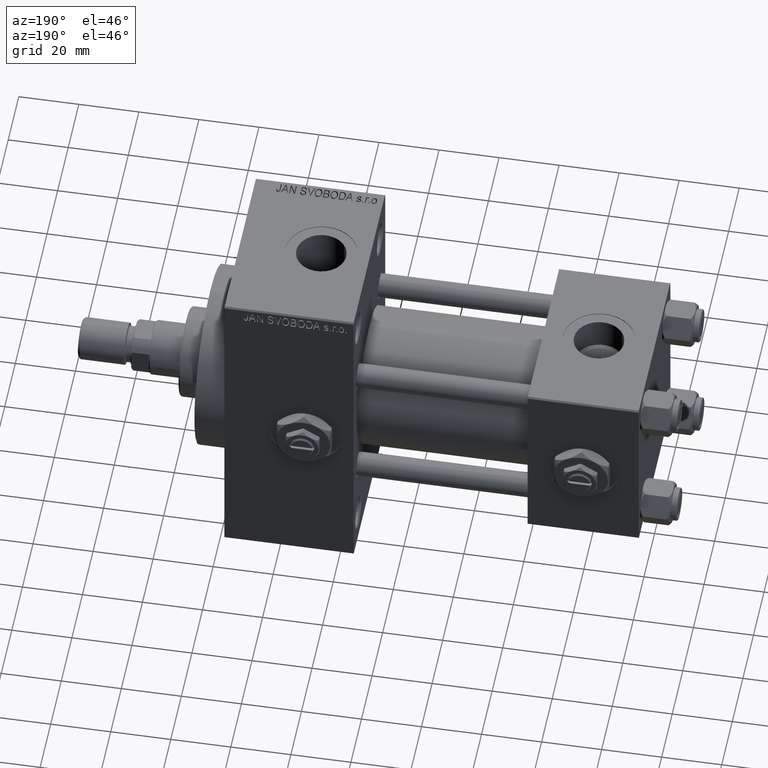
[diagram: clean part render]
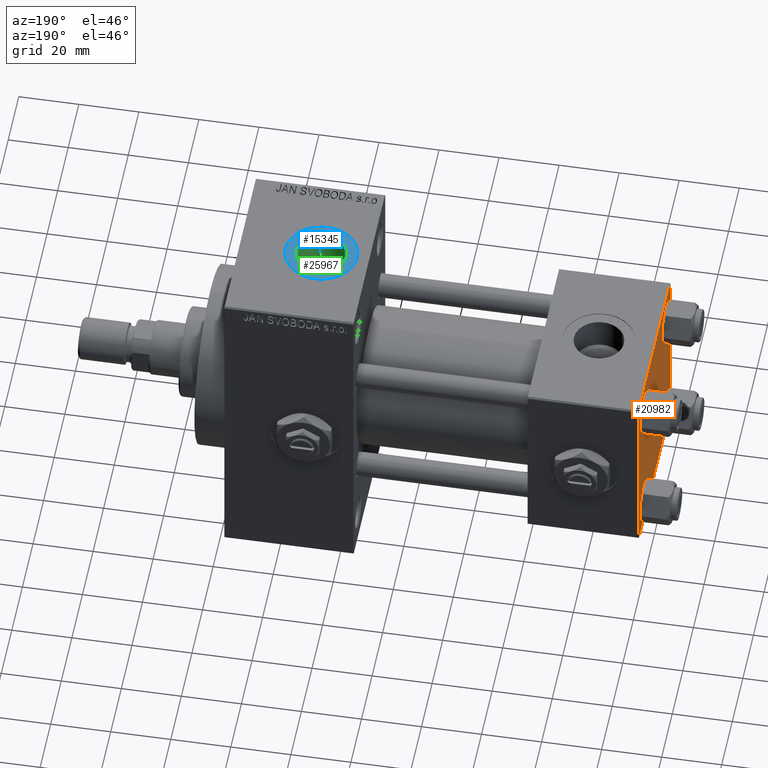
[diagram: same view with three faces highlighted in distinct colors, each labeled with its STEP entity id]
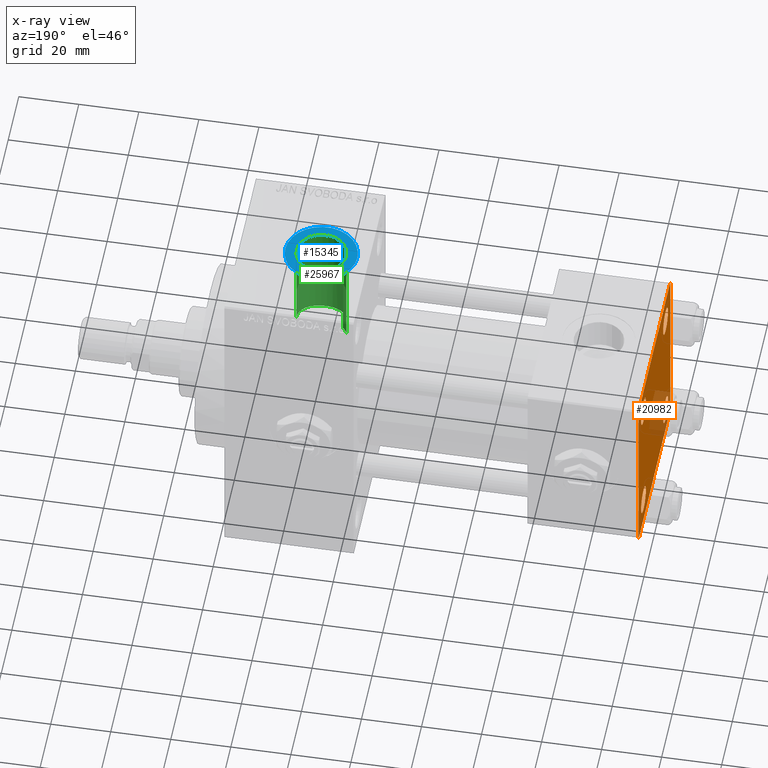
[diagram: x-ray of the same camera — body ghosted, the three highlighted faces saturated]
A machine part, auxiliary view with three faces highlighted in distinct colors.
The next image is the same camera in x-ray (body ghosted, the three faces saturated) — at least one of them is partly hidden behind the body in this view.
Their STEP definitions:

[orange] entity #20982 — the highlighted planar face has unit normal (-1, 0, 0).
#263 = EDGE_CURVE ( 'NONE', #43313, #36264, #24461, .T. ) ;
#1084 = CARTESIAN_POINT ( 'NONE',  ( 0.000000000000000000, 29.74999999999999645, 29.74999999999999645 ) ) ;
#1253 = DIRECTION ( 'NONE',  ( 1.000000000000000000, -0.000000000000000000, 0.000000000000000000 ) ) ;
#1678 = DIRECTION ( 'NONE',  ( 1.000000000000000000, -0.000000000000000000, 0.000000000000000000 ) ) ;
#1746 = DIRECTION ( 'NONE',  ( 0.000000000000000000, -1.000000000000000000, -1.156482317317871725E-16 ) ) ;
#2324 = ORIENTED_EDGE ( 'NONE', *, *, #8087, .T. ) ;
#2532 = EDGE_CURVE ( 'NONE', #22028, #41818, #32144, .T. ) ;
#2867 = LINE ( 'NONE', #18198, #40672 ) ;
#3232 = LINE ( 'NONE', #14049, #17997 ) ;
#4261 = CIRCLE ( 'NONE', #11499, 4.500000000000017764 ) ;
#4282 = CARTESIAN_POINT ( 'NONE',  ( 0.000000000000000000, -20.84999999999999076, 20.85000000000000497 ) ) ;
#5052 = DIRECTION ( 'NONE',  ( 0.000000000000000000, 0.000000000000000000, 1.000000000000000000 ) ) ;
#5155 = CARTESIAN_POINT ( 'NONE',  ( 0.000000000000000000, 29.74999999999957723, -29.75000000000040501 ) ) ;
#5288 = CARTESIAN_POINT ( 'NONE',  ( 0.000000000000000000, -30.00000000000000000, 29.49999999999999289 ) ) ;
#5372 = ORIENTED_EDGE ( 'NONE', *, *, #17200, .T. ) ;
#5721 = ORIENTED_EDGE ( 'NONE', *, *, #15632, .T. ) ;
#5904 = DIRECTION ( 'NONE',  ( -0.000000000000000000, -0.7071067811865574537, -0.7071067811865376918 ) ) ;
#6044 = DIRECTION ( 'NONE',  ( 1.000000000000000000, -0.000000000000000000, 0.000000000000000000 ) ) ;
#7014 = FACE_BOUND ( 'NONE', #27038, .T. ) ;
#7262 = FACE_BOUND ( 'NONE', #13580, .T. ) ;
#8087 = EDGE_CURVE ( 'NONE', #11582, #13001, #33294, .T. ) ;
#8158 = ORIENTED_EDGE ( 'NONE', *, *, #16712, .T. ) ;
#8705 = VERTEX_POINT ( 'NONE', #5288 ) ;
#8767 = DIRECTION ( 'NONE',  ( -0.000000000000000000, 0.000000000000000000, 1.000000000000000000 ) ) ;
#8899 = EDGE_LOOP ( 'NONE', ( #47697, #22593 ) ) ;
#9476 = DIRECTION ( 'NONE',  ( 0.000000000000000000, 0.000000000000000000, 1.000000000000000000 ) ) ;
#9742 = CIRCLE ( 'NONE', #29803, 4.500000000000017764 ) ;
#9921 = DIRECTION ( 'NONE',  ( 0.000000000000000000, -1.000000000000000000, -1.156482317317871725E-16 ) ) ;
#10070 = CIRCLE ( 'NONE', #47056, 4.500000000000017764 ) ;
#10091 = EDGE_CURVE ( 'NONE', #47768, #18300, #9742, .T. ) ;
#10234 = DIRECTION ( 'NONE',  ( 0.000000000000000000, 0.000000000000000000, 1.000000000000000000 ) ) ;
#10552 = CARTESIAN_POINT ( 'NONE',  ( 0.000000000000000000, -20.84999999999999076, -25.35000000000002274 ) ) ;
#11109 = VECTOR ( 'NONE', #47153, 1000.000000000000114 ) ;
#11372 = DIRECTION ( 'NONE',  ( 0.000000000000000000, 0.000000000000000000, 1.000000000000000000 ) ) ;
#11499 = AXIS2_PLACEMENT_3D ( 'NONE', #17023, #21029, #20290 ) ;
#11569 = CARTESIAN_POINT ( 'NONE',  ( 0.000000000000000000, 29.49999999999999289, 30.00000000000000000 ) ) ;
#11582 = VERTEX_POINT ( 'NONE', #32688 ) ;
#11597 = VERTEX_POINT ( 'NONE', #15986 ) ;
#11707 = VERTEX_POINT ( 'NONE', #25245 ) ;
#12039 = VERTEX_POINT ( 'NONE', #46882 ) ;
#12818 = CARTESIAN_POINT ( 'NONE',  ( 0.000000000000000000, 29.99999999999999289, 29.50000000000000000 ) ) ;
#13001 = VERTEX_POINT ( 'NONE', #47307 ) ;
#13235 = CARTESIAN_POINT ( 'NONE',  ( 0.000000000000000000, -20.84999999999999076, 20.85000000000000497 ) ) ;
#13450 = CARTESIAN_POINT ( 'NONE',  ( 0.000000000000000000, 20.84999999999999787, -25.35000000000001918 ) ) ;
#13580 = EDGE_LOOP ( 'NONE', ( #5721, #5372 ) ) ;
#13838 = EDGE_CURVE ( 'NONE', #36264, #24321, #14589, .T. ) ;
#14049 = CARTESIAN_POINT ( 'NONE',  ( 0.000000000000000000, -30.00000000000000000, 29.99999999999999289 ) ) ;
#14589 = LINE ( 'NONE', #49323, #33039 ) ;
#14881 = EDGE_CURVE ( 'NONE', #41818, #22028, #29868, .T. ) ;
#15632 = EDGE_CURVE ( 'NONE', #38508, #25255, #20278, .T. ) ;
#15986 = CARTESIAN_POINT ( 'NONE',  ( 0.000000000000000000, 20.84999999999999787, 25.35000000000001918 ) ) ;
#16225 = CARTESIAN_POINT ( 'NONE',  ( 0.000000000000000000, 20.84999999999999787, -20.85000000000000142 ) ) ;
#16266 = AXIS2_PLACEMENT_3D ( 'NONE', #13235, #1678, #9476 ) ;
#16548 = AXIS2_PLACEMENT_3D ( 'NONE', #25594, #48284, #40490 ) ;
#16712 = EDGE_CURVE ( 'NONE', #24321, #39071, #16966, .T. ) ;
#16966 = LINE ( 'NONE', #5155, #31566 ) ;
#17023 = CARTESIAN_POINT ( 'NONE',  ( 0.000000000000000000, -20.84999999999999076, -20.85000000000000497 ) ) ;
#17200 = EDGE_CURVE ( 'NONE', #25255, #38508, #46848, .T. ) ;
#17339 = CARTESIAN_POINT ( 'NONE',  ( 0.000000000000000000, 29.99999999999999289, -30.00000000000000000 ) ) ;
#17997 = VECTOR ( 'NONE', #29393, 1000.000000000000000 ) ;
#18023 = DIRECTION ( 'NONE',  ( 1.000000000000000000, -0.000000000000000000, 0.000000000000000000 ) ) ;
#18198 = CARTESIAN_POINT ( 'NONE',  ( 0.000000000000000000, 29.99999999999999289, 30.00000000000000000 ) ) ;
#18300 = VERTEX_POINT ( 'NONE', #22788 ) ;
#18609 = DIRECTION ( 'NONE',  ( 1.000000000000000000, -0.000000000000000000, 0.000000000000000000 ) ) ;
#18944 = CARTESIAN_POINT ( 'NONE',  ( -0.000000000000000000, -29.74999999999999645, 29.74999999999999645 ) ) ;
#19197 = EDGE_LOOP ( 'NONE', ( #42544, #8158, #19503, #2324, #40662, #31643, #29646, #29338 ) ) ;
#19503 = ORIENTED_EDGE ( 'NONE', *, *, #40224, .T. ) ;
#20278 = CIRCLE ( 'NONE', #16266, 4.500000000000017764 ) ;
#20290 = DIRECTION ( 'NONE',  ( 0.000000000000000000, 0.000000000000000000, 1.000000000000000000 ) ) ;
#20982 = ADVANCED_FACE ( 'NONE', ( #7262, #38468, #41502, #7014, #22326 ), #43503, .T. ) ;
#21029 = DIRECTION ( 'NONE',  ( 1.000000000000000000, -0.000000000000000000, 0.000000000000000000 ) ) ;
#22028 = VERTEX_POINT ( 'NONE', #46773 ) ;
#22273 = ORIENTED_EDGE ( 'NONE', *, *, #42565, .T. ) ;
#22326 = FACE_OUTER_BOUND ( 'NONE', #19197, .T. ) ;
#22373 = DIRECTION ( 'NONE',  ( 0.000000000000000000, 0.000000000000000000, -1.000000000000000000 ) ) ;
#22593 = ORIENTED_EDGE ( 'NONE', *, *, #14881, .T. ) ;
#22622 = DIRECTION ( 'NONE',  ( 0.000000000000000000, 0.000000000000000000, 1.000000000000000000 ) ) ;
#22788 = CARTESIAN_POINT ( 'NONE',  ( 0.000000000000000000, -20.84999999999999076, -16.34999999999998721 ) ) ;
#24266 = DIRECTION ( 'NONE',  ( 1.000000000000000000, -0.000000000000000000, 0.000000000000000000 ) ) ;
#24321 = VERTEX_POINT ( 'NONE', #28728 ) ;
#24461 = LINE ( 'NONE', #1084, #11109 ) ;
#24744 = DIRECTION ( 'NONE',  ( 0.000000000000000000, -0.7071067811865474617, 0.7071067811865474617 ) ) ;
#25126 = ORIENTED_EDGE ( 'NONE', *, *, #10091, .T. ) ;
#25245 = CARTESIAN_POINT ( 'NONE',  ( 0.000000000000000000, -29.49999999999998579, 29.99999999999999289 ) ) ;
#25255 = VERTEX_POINT ( 'NONE', #45351 ) ;
#25594 = CARTESIAN_POINT ( 'NONE',  ( 0.000000000000000000, 20.84999999999999787, 20.85000000000000142 ) ) ;
#25803 = ORIENTED_EDGE ( 'NONE', *, *, #27201, .T. ) ;
#26071 = VECTOR ( 'NONE', #34311, 1000.000000000000114 ) ;
#27038 = EDGE_LOOP ( 'NONE', ( #25803, #22273 ) ) ;
#27201 = EDGE_CURVE ( 'NONE', #11597, #12039, #43085, .T. ) ;
#27325 = VECTOR ( 'NONE', #24744, 1000.000000000000114 ) ;
#28728 = CARTESIAN_POINT ( 'NONE',  ( 0.000000000000000000, 29.99999999999999289, -29.50000000000000000 ) ) ;
#29338 = ORIENTED_EDGE ( 'NONE', *, *, #263, .T. ) ;
#29393 = DIRECTION ( 'NONE',  ( 0.000000000000000000, 0.000000000000000000, -1.000000000000000000 ) ) ;
#29646 = ORIENTED_EDGE ( 'NONE', *, *, #43834, .F. ) ;
#29803 = AXIS2_PLACEMENT_3D ( 'NONE', #46117, #1253, #11372 ) ;
#29868 = CIRCLE ( 'NONE', #40358, 4.500000000000017764 ) ;
#31147 = CARTESIAN_POINT ( 'NONE',  ( 0.000000000000000000, 0.000000000000000000, 0.000000000000000000 ) ) ;
#31566 = VECTOR ( 'NONE', #5904, 999.9999999999998863 ) ;
#31643 = ORIENTED_EDGE ( 'NONE', *, *, #42004, .T. ) ;
#31954 = LINE ( 'NONE', #17339, #42138 ) ;
#32144 = CIRCLE ( 'NONE', #38574, 4.500000000000017764 ) ;
#32688 = CARTESIAN_POINT ( 'NONE',  ( 0.000000000000000000, -29.50000000000000000, -30.00000000000000711 ) ) ;
#33039 = VECTOR ( 'NONE', #22373, 1000.000000000000000 ) ;
#33294 = LINE ( 'NONE', #43911, #27325 ) ;
#33295 = CARTESIAN_POINT ( 'NONE',  ( 0.000000000000000000, 29.49999999999997868, -30.00000000000000000 ) ) ;
#34311 = DIRECTION ( 'NONE',  ( -0.000000000000000000, 0.7071067811865474617, 0.7071067811865474617 ) ) ;
#34605 = EDGE_CURVE ( 'NONE', #18300, #47768, #4261, .T. ) ;
#35177 = DIRECTION ( 'NONE',  ( -1.000000000000000000, 0.000000000000000000, -0.000000000000000000 ) ) ;
#35602 = DIRECTION ( 'NONE',  ( 0.000000000000000000, 0.000000000000000000, 1.000000000000000000 ) ) ;
#36000 = CARTESIAN_POINT ( 'NONE',  ( 0.000000000000000000, 20.84999999999999787, -20.85000000000000142 ) ) ;
#36264 = VERTEX_POINT ( 'NONE', #12818 ) ;
#37017 = CARTESIAN_POINT ( 'NONE',  ( 0.000000000000000000, -20.84999999999999076, 25.35000000000002274 ) ) ;
#38144 = AXIS2_PLACEMENT_3D ( 'NONE', #31147, #35177, #8767 ) ;
#38468 = FACE_BOUND ( 'NONE', #46565, .T. ) ;
#38508 = VERTEX_POINT ( 'NONE', #37017 ) ;
#38574 = AXIS2_PLACEMENT_3D ( 'NONE', #36000, #6044, #5052 ) ;
#38805 = AXIS2_PLACEMENT_3D ( 'NONE', #4282, #18609, #22622 ) ;
#39071 = VERTEX_POINT ( 'NONE', #33295 ) ;
#39942 = EDGE_CURVE ( 'NONE', #8705, #13001, #3232, .T. ) ;
#40224 = EDGE_CURVE ( 'NONE', #39071, #11582, #31954, .T. ) ;
#40358 = AXIS2_PLACEMENT_3D ( 'NONE', #16225, #24266, #35602 ) ;
#40490 = DIRECTION ( 'NONE',  ( 0.000000000000000000, 0.000000000000000000, 1.000000000000000000 ) ) ;
#40662 = ORIENTED_EDGE ( 'NONE', *, *, #39942, .F. ) ;
#40672 = VECTOR ( 'NONE', #9921, 1000.000000000000000 ) ;
#41502 = FACE_BOUND ( 'NONE', #8899, .T. ) ;
#41818 = VERTEX_POINT ( 'NONE', #13450 ) ;
#42004 = EDGE_CURVE ( 'NONE', #8705, #11707, #49665, .T. ) ;
#42138 = VECTOR ( 'NONE', #1746, 1000.000000000000000 ) ;
#42544 = ORIENTED_EDGE ( 'NONE', *, *, #13838, .T. ) ;
#42565 = EDGE_CURVE ( 'NONE', #12039, #11597, #10070, .T. ) ;
#43085 = CIRCLE ( 'NONE', #16548, 4.500000000000017764 ) ;
#43313 = VERTEX_POINT ( 'NONE', #11569 ) ;
#43503 = PLANE ( 'NONE',  #38144 ) ;
#43834 = EDGE_CURVE ( 'NONE', #43313, #11707, #2867, .T. ) ;
#43911 = CARTESIAN_POINT ( 'NONE',  ( 0.000000000000000000, -29.75000000000001066, -29.75000000000001066 ) ) ;
#44734 = CARTESIAN_POINT ( 'NONE',  ( 0.000000000000000000, 20.84999999999999787, 20.85000000000000142 ) ) ;
#45351 = CARTESIAN_POINT ( 'NONE',  ( 0.000000000000000000, -20.84999999999999076, 16.34999999999998721 ) ) ;
#46117 = CARTESIAN_POINT ( 'NONE',  ( 0.000000000000000000, -20.84999999999999076, -20.85000000000000497 ) ) ;
#46565 = EDGE_LOOP ( 'NONE', ( #49097, #25126 ) ) ;
#46773 = CARTESIAN_POINT ( 'NONE',  ( 0.000000000000000000, 20.84999999999999787, -16.34999999999998366 ) ) ;
#46848 = CIRCLE ( 'NONE', #38805, 4.500000000000017764 ) ;
#46882 = CARTESIAN_POINT ( 'NONE',  ( 0.000000000000000000, 20.84999999999999787, 16.34999999999998366 ) ) ;
#47056 = AXIS2_PLACEMENT_3D ( 'NONE', #44734, #18023, #10234 ) ;
#47153 = DIRECTION ( 'NONE',  ( 0.000000000000000000, 0.7071067811865474617, -0.7071067811865474617 ) ) ;
#47307 = CARTESIAN_POINT ( 'NONE',  ( 0.000000000000000000, -30.00000000000000000, -29.50000000000001776 ) ) ;
#47697 = ORIENTED_EDGE ( 'NONE', *, *, #2532, .T. ) ;
#47768 = VERTEX_POINT ( 'NONE', #10552 ) ;
#48284 = DIRECTION ( 'NONE',  ( 1.000000000000000000, -0.000000000000000000, 0.000000000000000000 ) ) ;
#49097 = ORIENTED_EDGE ( 'NONE', *, *, #34605, .T. ) ;
#49323 = CARTESIAN_POINT ( 'NONE',  ( 0.000000000000000000, 29.99999999999999289, 30.00000000000000000 ) ) ;
#49665 = LINE ( 'NONE', #18944, #26071 ) ;

[blue] entity #15345 — the highlighted planar face has unit normal (0, 0, 1).
#544 = EDGE_LOOP ( 'NONE', ( #6720, #5436 ) ) ;
#1108 = DIRECTION ( 'NONE',  ( 1.000000000000000000, 0.000000000000000000, 0.000000000000000000 ) ) ;
#4641 = DIRECTION ( 'NONE',  ( -0.000000000000000000, -0.000000000000000000, -1.000000000000000000 ) ) ;
#5131 = AXIS2_PLACEMENT_3D ( 'NONE', #14584, #7555, #6565 ) ;
#5436 = ORIENTED_EDGE ( 'NONE', *, *, #32271, .T. ) ;
#6565 = DIRECTION ( 'NONE',  ( 1.000000000000000000, 0.000000000000000000, 0.000000000000000000 ) ) ;
#6720 = ORIENTED_EDGE ( 'NONE', *, *, #47299, .T. ) ;
#7415 = VERTEX_POINT ( 'NONE', #46611 ) ;
#7555 = DIRECTION ( 'NONE',  ( 0.000000000000000000, 0.000000000000000000, 1.000000000000000000 ) ) ;
#7604 = EDGE_CURVE ( 'NONE', #45695, #7415, #28111, .T. ) ;
#8392 = VERTEX_POINT ( 'NONE', #27716 ) ;
#10840 = ORIENTED_EDGE ( 'NONE', *, *, #7604, .T. ) ;
#11801 = DIRECTION ( 'NONE',  ( 0.000000000000000000, 0.000000000000000000, 1.000000000000000000 ) ) ;
#12440 = CIRCLE ( 'NONE', #5131, 11.99999999999999645 ) ;
#12853 = AXIS2_PLACEMENT_3D ( 'NONE', #35466, #11801, #20103 ) ;
#14584 = CARTESIAN_POINT ( 'NONE',  ( 111.0000000000000000, 6.302828629382399373E-15, 54.29999999999999716 ) ) ;
#15345 = ADVANCED_FACE ( 'NONE', ( #49781, #42750 ), #23332, .T. ) ;
#18273 = CARTESIAN_POINT ( 'NONE',  ( 123.0000000000000000, 6.302828629382399373E-15, 54.29999999999999716 ) ) ;
#20103 = DIRECTION ( 'NONE',  ( 1.000000000000000000, 0.000000000000000000, 0.000000000000000000 ) ) ;
#22330 = EDGE_LOOP ( 'NONE', ( #10840, #43518 ) ) ;
#22571 = DIRECTION ( 'NONE',  ( 0.000000000000000000, 0.000000000000000000, 1.000000000000000000 ) ) ;
#22992 = CARTESIAN_POINT ( 'NONE',  ( 111.0000000000000000, 6.302828629382400162E-15, 54.29999999999999716 ) ) ;
#23332 = PLANE ( 'NONE',  #24232 ) ;
#24232 = AXIS2_PLACEMENT_3D ( 'NONE', #46766, #22571, #38716 ) ;
#27149 = CIRCLE ( 'NONE', #40851, 8.330000000000003624 ) ;
#27693 = CARTESIAN_POINT ( 'NONE',  ( 111.0000000000000000, 6.302828629382400162E-15, 54.29999999999999716 ) ) ;
#27716 = CARTESIAN_POINT ( 'NONE',  ( 102.6700000000000017, 6.302828629382400162E-15, 54.29999999999999716 ) ) ;
#28111 = CIRCLE ( 'NONE', #12853, 11.99999999999999645 ) ;
#30646 = CARTESIAN_POINT ( 'NONE',  ( 119.3300000000000125, 7.322959413072145713E-15, 54.29999999999999716 ) ) ;
#32233 = DIRECTION ( 'NONE',  ( 1.000000000000000000, 0.000000000000000000, 0.000000000000000000 ) ) ;
#32271 = EDGE_CURVE ( 'NONE', #41333, #8392, #27149, .T. ) ;
#35466 = CARTESIAN_POINT ( 'NONE',  ( 111.0000000000000000, 6.302828629382399373E-15, 54.29999999999999716 ) ) ;
#37590 = AXIS2_PLACEMENT_3D ( 'NONE', #22992, #4641, #1108 ) ;
#38635 = EDGE_CURVE ( 'NONE', #7415, #45695, #12440, .T. ) ;
#38716 = DIRECTION ( 'NONE',  ( 1.000000000000000000, 0.000000000000000000, -0.000000000000000000 ) ) ;
#40851 = AXIS2_PLACEMENT_3D ( 'NONE', #27693, #43339, #32233 ) ;
#41333 = VERTEX_POINT ( 'NONE', #30646 ) ;
#42750 = FACE_OUTER_BOUND ( 'NONE', #22330, .T. ) ;
#43220 = CIRCLE ( 'NONE', #37590, 8.330000000000003624 ) ;
#43339 = DIRECTION ( 'NONE',  ( -0.000000000000000000, -0.000000000000000000, -1.000000000000000000 ) ) ;
#43518 = ORIENTED_EDGE ( 'NONE', *, *, #38635, .T. ) ;
#45695 = VERTEX_POINT ( 'NONE', #18273 ) ;
#46611 = CARTESIAN_POINT ( 'NONE',  ( 99.00000000000000000, 7.772404788359221939E-15, 54.29999999999999716 ) ) ;
#46766 = CARTESIAN_POINT ( 'NONE',  ( 111.0000000000000000, 6.302828629382399373E-15, 54.29999999999999716 ) ) ;
#47299 = EDGE_CURVE ( 'NONE', #8392, #41333, #43220, .T. ) ;
#49781 = FACE_BOUND ( 'NONE', #544, .T. ) ;

[green] entity #25967 — the highlighted cylindrical surface (edge-blend (fillet) strip) has radius 8.33 mm, axis along (0, 0, -1).
#1494 = CARTESIAN_POINT ( 'NONE',  ( 112.3403738839046895, -8.265299052519043954, 20.92696222447262500 ) ) ;
#2144 = B_SPLINE_CURVE_WITH_KNOTS ( 'NONE', 3,
 ( #45236, #41961, #11231, #19028, #29614, #26322, #30611, #41716, #41469, #6980, #41221, #45977, #3706, #26574 ),
 .UNSPECIFIED., .F., .F.,
 ( 4, 2, 2, 2, 2, 2, 4 ),
 ( 0.02049932184141860583, 0.02125918471438761892, 0.02201904758735663548, 0.02353877333329466165, 0.02429863620626367127, 0.02505849907923268435, 0.02657822482517071053 ),
 .UNSPECIFIED. ) ;
#2387 = B_SPLINE_CURVE_WITH_KNOTS ( 'NONE', 3,
 ( #40003, #21084, #5529, #8555, #39756, #47054, #23868, #39252, #35464, #4768, #16335, #35715, #43537, #12555, #27895, #43286, #1494, #24124, #39509, #31945, #47306, #12801, #5278, #20600, #16835, #48527, #17570, #26089, #33165, #14529, #45249, #32923 ),
 .UNSPECIFIED., .F., .F.,
 ( 4, 2, 2, 2, 2, 2, 2, 2, 2, 2, 2, 2, 2, 2, 2, 4 ),
 ( 0.02026158208243475367, 0.02152696880141127117, 0.02279235552038778867, 0.02405774223936430270, 0.02532312895834082020, 0.02658851567731733770, 0.02785390239629385173, 0.03038467583424691448, 0.03291544927219997724, 0.03354814263168821864, 0.03418083599117646698, 0.03544622271015295673, 0.03671160942912944647, 0.03797699614810593621, 0.03924238286708242596, 0.04050776958605891570 ),
 .UNSPECIFIED. ) ;
#3415 = CARTESIAN_POINT ( 'NONE',  ( 102.6700000000000017, 6.302828629382400162E-15, 77.29999999999999716 ) ) ;
#3706 = CARTESIAN_POINT ( 'NONE',  ( 102.6700000000000017, -0.5084530117862672283, 15.49999999999999822 ) ) ;
#4768 = CARTESIAN_POINT ( 'NONE',  ( 117.6031555897930758, -5.095277354536523973, 21.91828998158686304 ) ) ;
#4878 = DIRECTION ( 'NONE',  ( 0.000000000000000000, 0.000000000000000000, -1.000000000000000000 ) ) ;
#5278 = CARTESIAN_POINT ( 'NONE',  ( 109.3814412075936531, -8.182171164303330357, 20.95982457214782357 ) ) ;
#5383 = CARTESIAN_POINT ( 'NONE',  ( 119.3300000000000125, 7.322959413072145713E-15, 77.29999999999999716 ) ) ;
#5529 = CARTESIAN_POINT ( 'NONE',  ( 119.2979863424998257, -0.8432915997222955040, 22.48808859033163188 ) ) ;
#6980 = CARTESIAN_POINT ( 'NONE',  ( 102.9120937043486492, -2.009728921522578204, 15.37113873265544761 ) ) ;
#8392 = VERTEX_POINT ( 'NONE', #27716 ) ;
#8555 = CARTESIAN_POINT ( 'NONE',  ( 119.1699291769579077, -1.679278209817679945, 22.44115179447787156 ) ) ;
#9402 = LINE ( 'NONE', #5383, #48880 ) ;
#11231 = CARTESIAN_POINT ( 'NONE',  ( 104.4250998660804157, -5.120614576075413815, 14.63125231332695009 ) ) ;
#12555 = CARTESIAN_POINT ( 'NONE',  ( 115.4717217021022293, -7.077548616542896909, 21.36464718587223643 ) ) ;
#12801 = CARTESIAN_POINT ( 'NONE',  ( 109.7966742200955963, -8.253438808842114227, 20.93161653585327286 ) ) ;
#12815 = LINE ( 'NONE', #3415, #23494 ) ;
#14529 = CARTESIAN_POINT ( 'NONE',  ( 105.3158746668531620, -6.103616970294096333, 21.65812902678066720 ) ) ;
#16335 = CARTESIAN_POINT ( 'NONE',  ( 117.3413009043436830, -5.417501232309193782, 21.84028767977485330 ) ) ;
#16401 = CARTESIAN_POINT ( 'NONE',  ( 104.7400000000000233, -5.495570943951159748, 14.49305695841977126 ) ) ;
#16835 = CARTESIAN_POINT ( 'NONE',  ( 108.1560306839754588, -7.840697625789145420, 21.09036237300174932 ) ) ;
#17302 = EDGE_CURVE ( 'NONE', #8392, #19199, #12815, .T. ) ;
#17570 = CARTESIAN_POINT ( 'NONE',  ( 107.0116854358692962, -7.325101535721546320, 21.27547271216653968 ) ) ;
#19028 = CARTESIAN_POINT ( 'NONE',  ( 104.1330257393911722, -4.721723193058591228, 14.76480843021959899 ) ) ;
#19182 = ORIENTED_EDGE ( 'NONE', *, *, #31924, .T. ) ;
#19199 = VERTEX_POINT ( 'NONE', #49193 ) ;
#19280 = DIRECTION ( 'NONE',  ( 0.000000000000000000, 0.000000000000000000, -1.000000000000000000 ) ) ;
#19529 = CYLINDRICAL_SURFACE ( 'NONE', #21305, 8.330000000000003624 ) ;
#20600 = CARTESIAN_POINT ( 'NONE',  ( 108.5613052431537540, -7.976241308370980221, 21.03905286955202314 ) ) ;
#21084 = CARTESIAN_POINT ( 'NONE',  ( 119.3300000000000409, -0.4228661663087284195, 22.50000000000001421 ) ) ;
#21305 = AXIS2_PLACEMENT_3D ( 'NONE', #27329, #19280, #34644 ) ;
#22811 = ORIENTED_EDGE ( 'NONE', *, *, #34143, .T. ) ;
#23039 = VERTEX_POINT ( 'NONE', #24782 ) ;
#23494 = VECTOR ( 'NONE', #37400, 1000.000000000000000 ) ;
#23868 = CARTESIAN_POINT ( 'NONE',  ( 118.6639140372367791, -3.290714903397350177, 22.26132373405805254 ) ) ;
#24124 = CARTESIAN_POINT ( 'NONE',  ( 111.2794540716097629, -8.328024065339553417, 20.90201419577500985 ) ) ;
#24451 = CARTESIAN_POINT ( 'NONE',  ( 104.7400000000000233, -5.495570943951159748, 21.81854028114621258 ) ) ;
#24782 = CARTESIAN_POINT ( 'NONE',  ( 119.3300000000000125, 2.755455287773006291E-15, 22.50000000000000355 ) ) ;
#25967 = ADVANCED_FACE ( 'NONE', ( #26821 ), #19529, .F. ) ;
#26089 = CARTESIAN_POINT ( 'NONE',  ( 106.2981393575764457, -6.888851288155064978, 21.42070446004186479 ) ) ;
#26322 = CARTESIAN_POINT ( 'NONE',  ( 103.6117315744683509, -3.879035329860508252, 15.01323898488448272 ) ) ;
#26574 = CARTESIAN_POINT ( 'NONE',  ( 102.6700000000000017, 1.898202536900960226E-15, 15.50000000000000000 ) ) ;
#26821 = FACE_OUTER_BOUND ( 'NONE', #37364, .T. ) ;
#27149 = CIRCLE ( 'NONE', #40851, 8.330000000000003624 ) ;
#27329 = CARTESIAN_POINT ( 'NONE',  ( 111.0000000000000000, 6.302828629382400162E-15, 77.29999999999999716 ) ) ;
#27693 = CARTESIAN_POINT ( 'NONE',  ( 111.0000000000000000, 6.302828629382400162E-15, 54.29999999999999716 ) ) ;
#27716 = CARTESIAN_POINT ( 'NONE',  ( 102.6700000000000017, 6.302828629382400162E-15, 54.29999999999999716 ) ) ;
#27895 = CARTESIAN_POINT ( 'NONE',  ( 114.7487363894115333, -7.487015359358448308, 21.22021487626641090 ) ) ;
#27961 = VERTEX_POINT ( 'NONE', #16401 ) ;
#29614 = CARTESIAN_POINT ( 'NONE',  ( 103.9948433974193023, -4.514179031432338007, 14.82972530592077298 ) ) ;
#30611 = CARTESIAN_POINT ( 'NONE',  ( 103.3948893894385748, -3.435066750549618853, 15.12202026186481341 ) ) ;
#30646 = CARTESIAN_POINT ( 'NONE',  ( 119.3300000000000125, 7.322959413072145713E-15, 54.29999999999999716 ) ) ;
#31924 = EDGE_CURVE ( 'NONE', #41333, #23039, #9402, .T. ) ;
#31945 = CARTESIAN_POINT ( 'NONE',  ( 110.6388607599010214, -8.324890737869420576, 20.90325837862613412 ) ) ;
#32233 = DIRECTION ( 'NONE',  ( 1.000000000000000000, 0.000000000000000000, 0.000000000000000000 ) ) ;
#32271 = EDGE_CURVE ( 'NONE', #41333, #8392, #27149, .T. ) ;
#32923 = CARTESIAN_POINT ( 'NONE',  ( 104.7400000000000233, -5.495570943951159748, 21.81854028114621258 ) ) ;
#33165 = CARTESIAN_POINT ( 'NONE',  ( 105.9550632640747949, -6.641689111475751695, 21.49922460944221569 ) ) ;
#33918 = CARTESIAN_POINT ( 'NONE',  ( 104.7400000000000233, -5.495570943951159748, 77.29999999999999716 ) ) ;
#34143 = EDGE_CURVE ( 'NONE', #23039, #49094, #2387, .T. ) ;
#34644 = DIRECTION ( 'NONE',  ( -1.000000000000000000, 0.000000000000000000, 0.000000000000000000 ) ) ;
#35303 = ORIENTED_EDGE ( 'NONE', *, *, #17302, .F. ) ;
#35464 = CARTESIAN_POINT ( 'NONE',  ( 118.0799258618782517, -4.408873422199381054, 22.06660649451128364 ) ) ;
#35715 = CARTESIAN_POINT ( 'NONE',  ( 116.7709310325000160, -6.021442665975470732, 21.68155238348414926 ) ) ;
#37216 = LINE ( 'NONE', #33918, #48550 ) ;
#37364 = EDGE_LOOP ( 'NONE', ( #38092, #19182, #22811, #46099, #39220, #35303 ) ) ;
#37400 = DIRECTION ( 'NONE',  ( 0.000000000000000000, 0.000000000000000000, -1.000000000000000000 ) ) ;
#38092 = ORIENTED_EDGE ( 'NONE', *, *, #32271, .F. ) ;
#39220 = ORIENTED_EDGE ( 'NONE', *, *, #46123, .T. ) ;
#39252 = CARTESIAN_POINT ( 'NONE',  ( 118.2951098973458244, -4.042988316980855146, 22.13706359110742383 ) ) ;
#39509 = CARTESIAN_POINT ( 'NONE',  ( 111.0645977083230065, -8.332469890991669459, 20.90023832775082724 ) ) ;
#39756 = CARTESIAN_POINT ( 'NONE',  ( 119.0725935047802437, -2.097577831626820100, 22.40566635581345167 ) ) ;
#39857 = EDGE_CURVE ( 'NONE', #27961, #49094, #37216, .T. ) ;
#40003 = CARTESIAN_POINT ( 'NONE',  ( 119.3300000000000125, 2.755455287773006291E-15, 22.50000000000000355 ) ) ;
#40851 = AXIS2_PLACEMENT_3D ( 'NONE', #27693, #43339, #32233 ) ;
#41221 = CARTESIAN_POINT ( 'NONE',  ( 102.8541189623221044, -1.760060972621111608, 15.40178429883650502 ) ) ;
#41250 = DIRECTION ( 'NONE',  ( -0.000000000000000000, -0.000000000000000000, 1.000000000000000000 ) ) ;
#41333 = VERTEX_POINT ( 'NONE', #30646 ) ;
#41469 = CARTESIAN_POINT ( 'NONE',  ( 103.0493583877047001, -2.498106590616146150, 15.29935880154671857 ) ) ;
#41716 = CARTESIAN_POINT ( 'NONE',  ( 103.1283513953167699, -2.736452263294506526, 15.25837881643903948 ) ) ;
#41961 = CARTESIAN_POINT ( 'NONE',  ( 104.5787930821608853, -5.311940286469821082, 14.56268721714078396 ) ) ;
#43286 = CARTESIAN_POINT ( 'NONE',  ( 113.1626272159215887, -8.088971939222112439, 20.99812971082578272 ) ) ;
#43339 = DIRECTION ( 'NONE',  ( -0.000000000000000000, -0.000000000000000000, -1.000000000000000000 ) ) ;
#43537 = CARTESIAN_POINT ( 'NONE',  ( 116.4597915280917988, -6.305104980880364529, 21.60018777995134798 ) ) ;
#45236 = CARTESIAN_POINT ( 'NONE',  ( 104.7400000000000233, -5.495570943951159748, 14.49305695841977126 ) ) ;
#45249 = CARTESIAN_POINT ( 'NONE',  ( 105.0173696454154140, -5.811522461638596759, 21.73895961452385350 ) ) ;
#45977 = CARTESIAN_POINT ( 'NONE',  ( 102.7161642970316251, -1.011996084777072147, 15.47504315940083508 ) ) ;
#46099 = ORIENTED_EDGE ( 'NONE', *, *, #39857, .F. ) ;
#46123 = EDGE_CURVE ( 'NONE', #27961, #19199, #2144, .T. ) ;
#47054 = CARTESIAN_POINT ( 'NONE',  ( 118.8195974207912968, -2.901808889280238279, 22.31576175661178141 ) ) ;
#47306 = CARTESIAN_POINT ( 'NONE',  ( 110.4273342078095936, -8.312974207010734418, 20.90801079915067362 ) ) ;
#48527 = CARTESIAN_POINT ( 'NONE',  ( 107.3830852825355180, -7.515492575748676352, 21.20842510955139204 ) ) ;
#48550 = VECTOR ( 'NONE', #41250, 1000.000000000000000 ) ;
#48880 = VECTOR ( 'NONE', #4878, 1000.000000000000000 ) ;
#49094 = VERTEX_POINT ( 'NONE', #24451 ) ;
#49193 = CARTESIAN_POINT ( 'NONE',  ( 102.6700000000000017, 1.898202536900960226E-15, 15.50000000000000000 ) ) ;